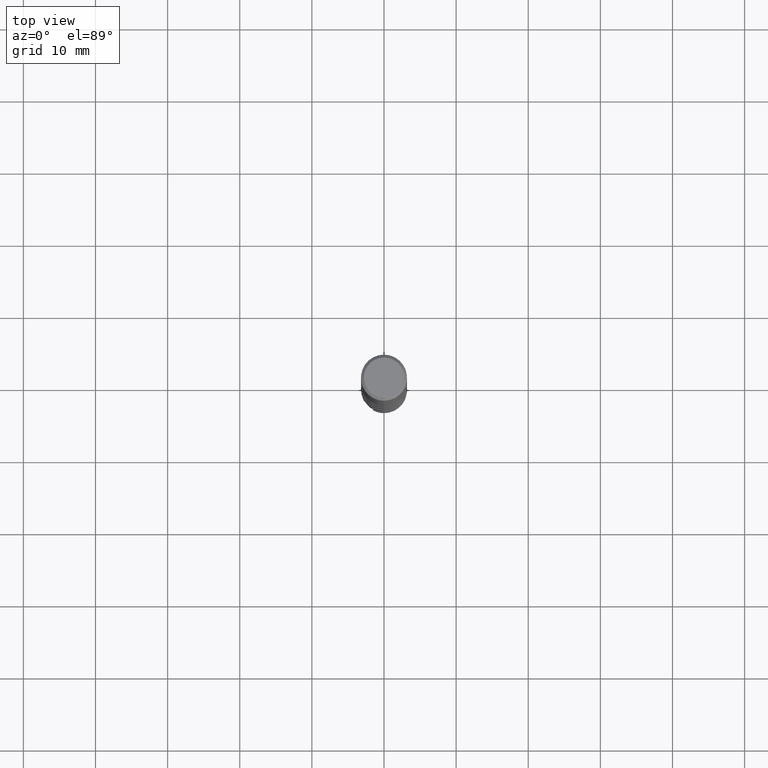
[diagram: clean part render]
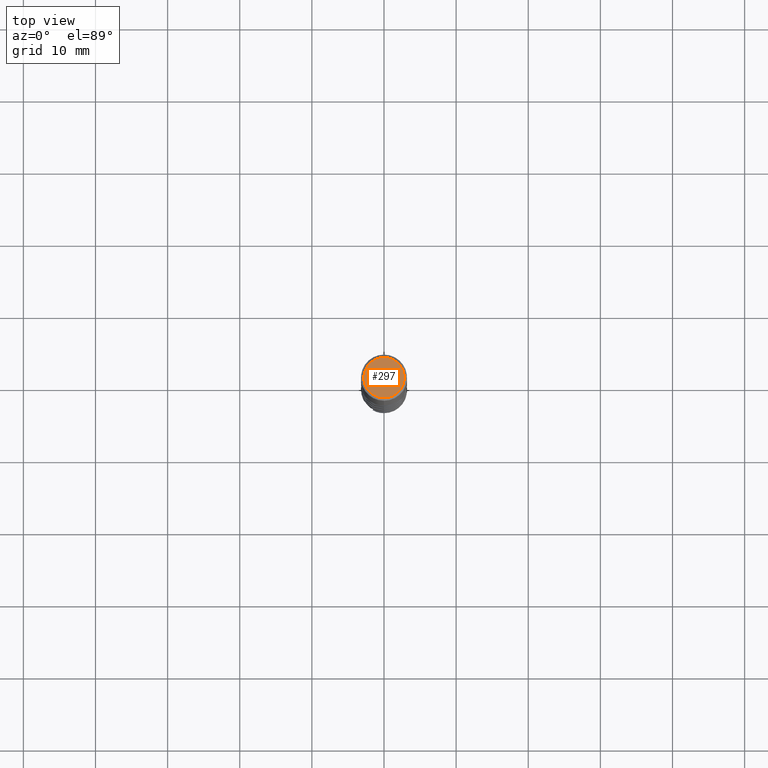
[diagram: same view with one face highlighted and labeled with its STEP entity id]
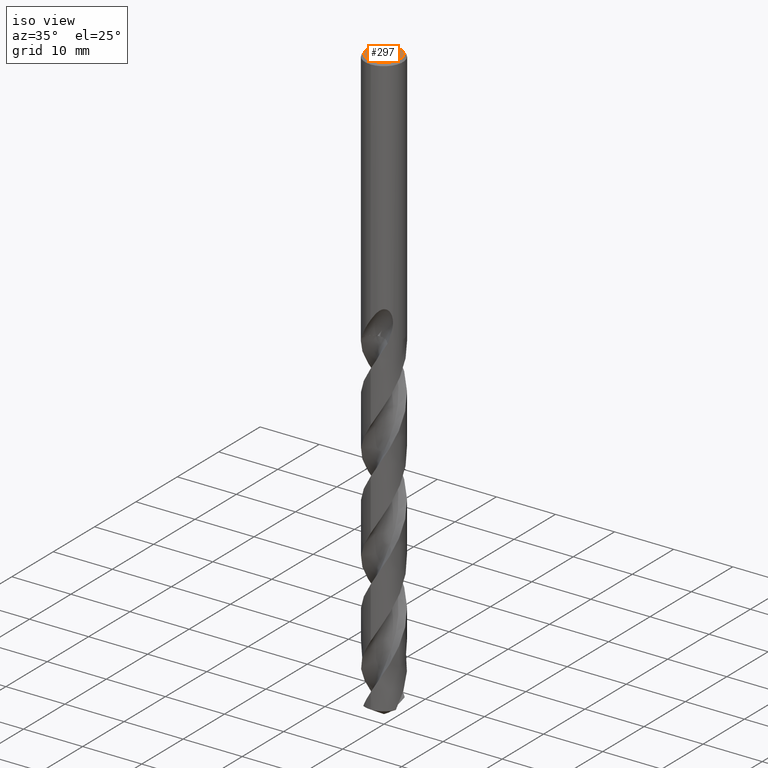
[diagram: same view with one face highlighted and labeled with its STEP entity id]
A machine part, top view. The second image highlights one B-rep face of the part: STEP entity #297.
A second angle (iso view) of the same face is appended — the face is thin or edge-on in the first view.
In plain terms, the highlighted planar face has unit normal (-0, 0, 1).
Its self-contained STEP definition (entity closure, byte-faithful):
#297=ADVANCED_FACE('',(#798),#799,.T.);
#311=VERTEX_POINT('',#813);
#541=VERTEX_POINT('',#1064);
#579=EDGE_CURVE('',#311,#541,#1105,.T.);
#659=EDGE_CURVE('',#541,#311,#1193,.T.);
#798=FACE_OUTER_BOUND('',#1538,.T.);
#799=PLANE('',#1539);
#813=CARTESIAN_POINT('',(3.42889779070266E-016,-2.8,0.0));
#1064=CARTESIAN_POINT('',(0.0,2.8,0.0));
#1105=CIRCLE('',#6066,2.8);
#1193=CIRCLE('',#6972,2.8);
#1538=EDGE_LOOP('',(#8792,#8793));
#1539=AXIS2_PLACEMENT_3D('',#8794,#8795,#8796);
#6066=AXIS2_PLACEMENT_3D('',#9134,#9135,#9136);
#6972=AXIS2_PLACEMENT_3D('',#9241,#9242,#9243);
#8792=ORIENTED_EDGE('',*,*,#659,.F.);
#8793=ORIENTED_EDGE('',*,*,#579,.F.);
#8794=CARTESIAN_POINT('',(0.0,1.4,0.0));
#8795=DIRECTION('',(-0.0,0.0,1.0));
#8796=DIRECTION('',(0.0,-1.0,0.0));
#9134=CARTESIAN_POINT('',(0.0,0.0,0.0));
#9135=DIRECTION('',(0.0,0.0,-1.0));
#9136=DIRECTION('',(0.0,1.0,0.0));
#9241=CARTESIAN_POINT('',(0.0,0.0,0.0));
#9242=DIRECTION('',(0.0,0.0,-1.0));
#9243=DIRECTION('',(0.0,1.0,0.0));